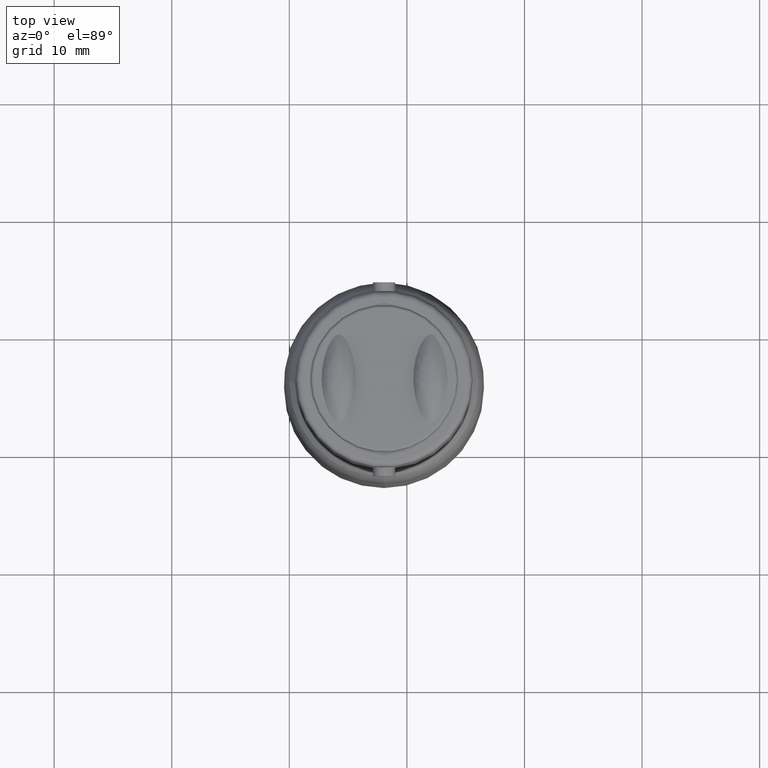
[diagram: clean part render]
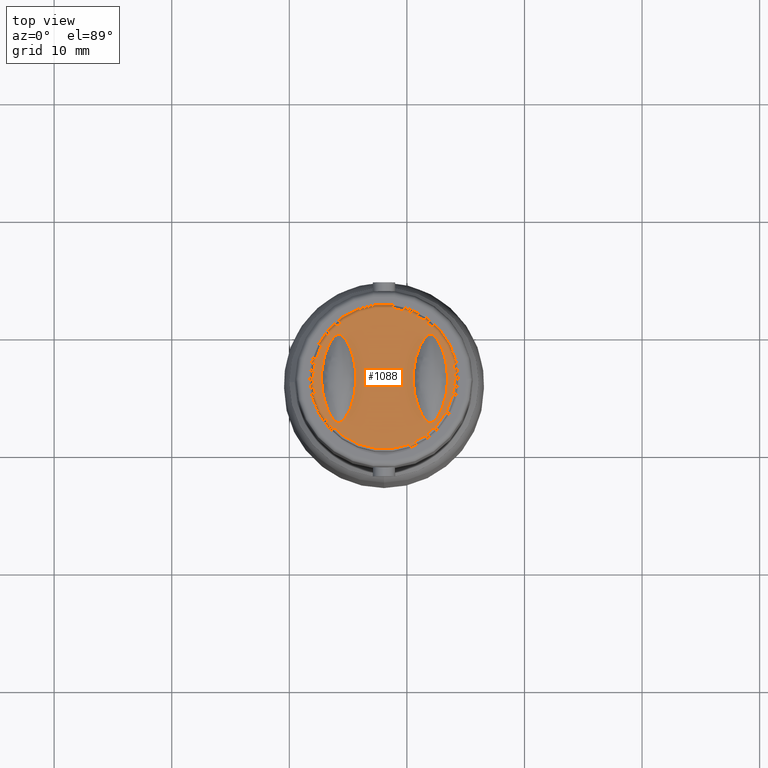
[diagram: same view with one face highlighted and labeled with its STEP entity id]
A machine part, top view. The second image highlights one B-rep face of the part: STEP entity #1088.
In plain terms, the highlighted planar face has unit normal (0, 0, -1).
Its self-contained STEP definition (entity closure, byte-faithful):
#739=CARTESIAN_POINT('',(-15.800000000000002,1.972957574304435,18.0));
#740=VERTEX_POINT('',#739);
#741=CARTESIAN_POINT('',(-15.800000000000002,1.972957574304443,18.0));
#742=CARTESIAN_POINT('',(-15.850782629635848,1.972957574304443,18.0));
#743=CARTESIAN_POINT('',(-15.908686070109809,1.986213762744933,18.0));
#744=CARTESIAN_POINT('',(-15.957294096310468,2.007260780977127,18.0));
#745=CARTESIAN_POINT('',(-15.986168685855077,2.019763325517483,18.0));
#746=CARTESIAN_POINT('',(-16.014145178373358,2.035201279453822,18.0));
#747=CARTESIAN_POINT('',(-16.041449401634488,2.053023016907709,18.0));
#748=CARTESIAN_POINT('',(-16.072800448924937,2.073486156560914,18.0));
#749=CARTESIAN_POINT('',(-16.100115073459218,2.094640493962290,18.0));
#750=CARTESIAN_POINT('',(-16.128805695748067,2.119553785065623,18.0));
#751=CARTESIAN_POINT('',(-16.195207572751283,2.177213367173455,18.0));
#752=CARTESIAN_POINT('',(-16.248475657404736,2.236938288240417,18.0));
#753=CARTESIAN_POINT('',(-16.302832606254640,2.305674664322323,18.0));
#754=CARTESIAN_POINT('',(-16.352989318148218,2.369099685128193,18.0));
#755=CARTESIAN_POINT('',(-16.400110086239980,2.437237137307885,18.0));
#756=CARTESIAN_POINT('',(-16.439998217818175,2.499561912207898,18.0));
#757=CARTESIAN_POINT('',(-16.475804140763941,2.555508280197265,18.0));
#758=CARTESIAN_POINT('',(-16.511120884351453,2.614914989491996,18.0));
#759=CARTESIAN_POINT('',(-16.545471683894824,2.676722536256025,18.0));
#760=CARTESIAN_POINT('',(-16.642949910460459,2.852115543901247,18.0));
#761=CARTESIAN_POINT('',(-16.732000547066463,3.046825292684816,18.0));
#762=CARTESIAN_POINT('',(-16.805010279170453,3.231603410074826,18.0));
#763=CARTESIAN_POINT('',(-16.856035915392241,3.360742645735350,18.0));
#764=CARTESIAN_POINT('',(-16.898936197187773,3.482229897963683,18.0));
#765=CARTESIAN_POINT('',(-16.940283054448468,3.612145467040460,18.0));
#766=CARTESIAN_POINT('',(-17.090009121652340,4.082598326462732,18.0));
#767=CARTESIAN_POINT('',(-17.193237693381953,4.613227743067776,18.0));
#768=CARTESIAN_POINT('',(-17.235813672992780,5.122452310108884,18.0));
#769=CARTESIAN_POINT('',(-17.251282016098873,5.307459452470453,18.0));
#770=CARTESIAN_POINT('',(-17.259230557906406,5.489531226549478,18.0));
#771=CARTESIAN_POINT('',(-17.260717623596815,5.664514864392626,18.0));
#772=CARTESIAN_POINT('',(-17.261946024384049,5.809061295573078,18.0));
#773=CARTESIAN_POINT('',(-17.258975921320378,5.953829603335936,18.0));
#774=CARTESIAN_POINT('',(-17.251142781273074,6.104089528496590,18.0));
#775=CARTESIAN_POINT('',(-17.224749010769749,6.610390444424077,18.0));
#776=CARTESIAN_POINT('',(-17.138576875250347,7.151804483174278,18.0));
#777=CARTESIAN_POINT('',(-16.999678669452344,7.642643747701627,18.0));
#778=CARTESIAN_POINT('',(-16.958865100476221,7.786870968376525,18.0));
#779=CARTESIAN_POINT('',(-16.913859884173821,7.926776562132245,18.0));
#780=CARTESIAN_POINT('',(-16.865646664627768,8.060371488048602,18.0));
#781=CARTESIAN_POINT('',(-16.828001183559373,8.164684066668544,18.0));
#782=CARTESIAN_POINT('',(-16.785261107063548,8.273852512033763,18.0));
#783=CARTESIAN_POINT('',(-16.737338596461868,8.384315774564625,18.0));
#784=CARTESIAN_POINT('',(-16.652787217715293,8.579210011752222,18.0));
#785=CARTESIAN_POINT('',(-16.552601795840495,8.775186820796344,18.0));
#786=CARTESIAN_POINT('',(-16.447582861926975,8.941021942019637,18.0));
#787=CARTESIAN_POINT('',(-16.409894728322115,9.000535174273434,18.0));
#788=CARTESIAN_POINT('',(-16.367027250287556,9.063539814138398,18.0));
#789=CARTESIAN_POINT('',(-16.320225793993128,9.124498407951869,18.0));
#790=CARTESIAN_POINT('',(-16.282097412325797,9.174160378216255,18.0));
#791=CARTESIAN_POINT('',(-16.241814333149435,9.221665416861928,18.0));
#792=CARTESIAN_POINT('',(-16.202187481645076,9.262876780144946,18.0));
#793=CARTESIAN_POINT('',(-16.171400494290221,9.294894810144907,18.0));
#794=CARTESIAN_POINT('',(-16.134294335158856,9.329818199873820,18.0));
#795=CARTESIAN_POINT('',(-16.097128268062129,9.359240325814687,18.0));
#796=CARTESIAN_POINT('',(-16.070250166028753,9.380518092467241,18.0));
#797=CARTESIAN_POINT('',(-16.043655807515364,9.399210935982259,18.0));
#798=CARTESIAN_POINT('',(-16.013335931358284,9.416813645529725,18.0));
#799=CARTESIAN_POINT('',(-15.976149986007693,9.438402566007609,18.0));
#800=CARTESIAN_POINT('',(-15.940315069038009,9.454526618784875,18.0));
#801=CARTESIAN_POINT('',(-15.899046169569541,9.465877795964655,18.0));
#802=CARTESIAN_POINT('',(-15.829081425319860,9.485121880942566,18.0));
#803=CARTESIAN_POINT('',(-15.759044955727221,9.483800375323893,18.0));
#804=CARTESIAN_POINT('',(-15.689801560759943,9.462639897978361,18.0));
#805=CARTESIAN_POINT('',(-15.643217305255851,9.448403954120920,18.0));
#806=CARTESIAN_POINT('',(-15.602122022324936,9.427628215292364,18.0));
#807=CARTESIAN_POINT('',(-15.561211193697554,9.401202311267291,18.0));
#808=CARTESIAN_POINT('',(-15.527681726256160,9.379544317079780,18.0));
#809=CARTESIAN_POINT('',(-15.498708157899532,9.357032900605461,18.0));
#810=CARTESIAN_POINT('',(-15.468342432056195,9.330457813954840,18.0));
#811=CARTESIAN_POINT('',(-15.409815532267489,9.279236992120994,18.0));
#812=CARTESIAN_POINT('',(-15.362451537455403,9.227293117586228,18.0));
#813=CARTESIAN_POINT('',(-15.313862924338457,9.167629843560631,18.0));
#814=CARTESIAN_POINT('',(-15.258313006955413,9.099418595485968,18.0));
#815=CARTESIAN_POINT('',(-15.205739906101771,9.024222739064978,18.0));
#816=CARTESIAN_POINT('',(-15.161822075383309,8.955776389425926,18.0));
#817=CARTESIAN_POINT('',(-15.123354281719406,8.895823973473476,18.0));
#818=CARTESIAN_POINT('',(-15.085806845860912,8.832475970196489,18.0));
#819=CARTESIAN_POINT('',(-15.049208852629585,8.766170886141273,18.0));
#820=CARTESIAN_POINT('',(-14.954752376659531,8.595042798894324,18.0));
#821=CARTESIAN_POINT('',(-14.868415313961719,8.406157184619485,18.0));
#822=CARTESIAN_POINT('',(-14.797161003575599,8.226381030785674,18.0));
#823=CARTESIAN_POINT('',(-14.744824474629159,8.094334845396785,18.0));
#824=CARTESIAN_POINT('',(-14.701000910874056,7.970286092709636,18.0));
#825=CARTESIAN_POINT('',(-14.658816557514717,7.837520840888412,18.0));
#826=CARTESIAN_POINT('',(-14.502283695840221,7.344870767021387,18.0));
#827=CARTESIAN_POINT('',(-14.397223163789132,6.786383472995874,18.0));
#828=CARTESIAN_POINT('',(-14.358370216393805,6.255879231840493,18.0));
#829=CARTESIAN_POINT('',(-14.346268100857923,6.090635047058013,18.0));
#830=CARTESIAN_POINT('',(-14.340138957848328,5.928204913042993,18.0));
#831=CARTESIAN_POINT('',(-14.339161529349111,5.771584639057931,18.0));
#832=CARTESIAN_POINT('',(-14.338164326475287,5.611795777323311,18.0));
#833=CARTESIAN_POINT('',(-14.342336575727296,5.449834643270605,18.0));
#834=CARTESIAN_POINT('',(-14.352604522897773,5.282334238838266,18.0));
#835=CARTESIAN_POINT('',(-14.383769740022043,4.773937926910739,18.0));
#836=CARTESIAN_POINT('',(-14.475318606403421,4.234446087897810,18.0));
#837=CARTESIAN_POINT('',(-14.617944146243888,3.748725599249985,18.0));
#838=CARTESIAN_POINT('',(-14.651761417480511,3.633558697668668,18.0));
#839=CARTESIAN_POINT('',(-14.688214068146713,3.521382706719704,18.0));
#840=CARTESIAN_POINT('',(-14.726781039921621,3.413233878534108,18.0));
#841=CARTESIAN_POINT('',(-14.767067322638724,3.300263788654168,18.0));
#842=CARTESIAN_POINT('',(-14.812406547535391,3.183785864735896,18.0));
#843=CARTESIAN_POINT('',(-14.864160661252571,3.064729576642641,18.0));
#844=CARTESIAN_POINT('',(-14.930721253775003,2.911612142880504,18.0));
#845=CARTESIAN_POINT('',(-15.006756003078070,2.757838106219436,18.0));
#846=CARTESIAN_POINT('',(-15.087399736774927,2.618822819533618,18.0));
#847=CARTESIAN_POINT('',(-15.132831328904583,2.540506929197511,18.0));
#848=CARTESIAN_POINT('',(-15.177787808859751,2.468905351760862,18.0));
#849=CARTESIAN_POINT('',(-15.232238453097269,2.392368030519584,18.0));
#850=CARTESIAN_POINT('',(-15.283270231933342,2.320636360399157,18.0));
#851=CARTESIAN_POINT('',(-15.340596831525886,2.249251549949433,18.0));
#852=CARTESIAN_POINT('',(-15.396832412567685,2.190641349769020,18.0));
#853=CARTESIAN_POINT('',(-15.428441582498520,2.157697442319999,18.0));
#854=CARTESIAN_POINT('',(-15.466499282884801,2.121890758421082,18.0));
#855=CARTESIAN_POINT('',(-15.504630987297716,2.091868503449623,18.0));
#856=CARTESIAN_POINT('',(-15.531137748287696,2.070998921322077,18.0));
#857=CARTESIAN_POINT('',(-15.557512169215835,2.052550262754628,18.0));
#858=CARTESIAN_POINT('',(-15.587428163252097,2.035241238382706,18.0));
#859=CARTESIAN_POINT('',(-15.624335549411418,2.013887080945675,18.0));
#860=CARTESIAN_POINT('',(-15.659909150655569,1.997919805679659,18.0));
#861=CARTESIAN_POINT('',(-15.700861734934486,1.986645282663578,18.0));
#862=CARTESIAN_POINT('',(-15.734004528835836,1.977520847680109,18.0));
#863=CARTESIAN_POINT('',(-15.768413659030896,1.972957574304443,18.0));
#864=CARTESIAN_POINT('',(-15.800000000000002,1.972957574304443,18.0));
#865=B_SPLINE_CURVE_WITH_KNOTS('',3,(#741,#742,#743,#744,#745,#746,#747,#748,#749,#750,#751,#752,#753,#754,#755,#756,#757,#758,#759,#760,#761,#762,#763,#764,#765,#766,#767,#768,#769,#770,#771,#772,#773,#774,#775,#776,#777,#778,#779,#780,#781,#782,#783,#784,#785,#786,#787,#788,#789,#790,#791,#792,#793,#794,#795,#796,#797,#798,#799,#800,#801,#802,#803,#804,#805,#806,#807,#808,#809,#810,#811,#812,#813,#814,#815,#816,#817,#818,#819,#820,#821,#822,#823,#824,#825,#826,#827,#828,#829,#830,#831,#832,#833,#834,#835,#836,#837,#838,#839,#840,#841,#842,#843,#844,#845,#846,#847,#848,#849,#850,#851,#852,#853,#854,#855,#856,#857,#858,#859,#860,#861,#862,#863,#864),.UNSPECIFIED.,.T.,.U.,(4,3,3,3,3,3,3,3,3,3,3,3,3,3,3,3,3,3,3,3,3,3,3,3,3,3,3,3,3,3,3,3,3,3,3,3,3,3,3,3,3,4),(0.0,0.015234788890754,0.024284699171071,0.034675918231182,0.058725464560160,0.080916669032005,0.100836793789790,0.157364690088197,0.196871366661082,0.339933734721068,0.391909938555948,0.434845237325848,0.579515754561759,0.622025447902261,0.655217544819677,0.713779534219268,0.734795669104770,0.751917170774408,0.765219248415910,0.774839168628980,0.786637562048103,0.806639829827420,0.820096575461184,0.831125379563491,0.852382296517004,0.876684697940642,0.897971263060282,0.952910174983660,0.993262989270723,1.142999585756325,1.189640309616475,1.237224622850423,1.381652270268526,1.415896830760768,1.451668009622444,1.497673064858636,1.523590551680981,1.547880722605964,1.561533860462691,1.571024662604987,1.582733472922399,1.592209375213131),.UNSPECIFIED.);
#866=EDGE_CURVE('',#740,#740,#865,.T.);
#894=CARTESIAN_POINT('',(-8.0,1.972957574304435,18.0));
#895=VERTEX_POINT('',#894);
#896=CARTESIAN_POINT('',(-8.0,1.972957574304443,18.0));
#897=CARTESIAN_POINT('',(-8.050782629635874,1.972957574304443,18.0));
#898=CARTESIAN_POINT('',(-8.108686070109874,1.986213762744950,18.0));
#899=CARTESIAN_POINT('',(-8.157294096310553,2.007260780977163,18.0));
#900=CARTESIAN_POINT('',(-8.186168685855142,2.019763325517517,18.0));
#901=CARTESIAN_POINT('',(-8.214145178373409,2.035201279453855,18.0));
#902=CARTESIAN_POINT('',(-8.241449401634522,2.053023016907734,18.0));
#903=CARTESIAN_POINT('',(-8.272800448924926,2.073486156560910,18.0));
#904=CARTESIAN_POINT('',(-8.300115073459166,2.094640493962255,18.0));
#905=CARTESIAN_POINT('',(-8.328805695747979,2.119553785065549,18.0));
#906=CARTESIAN_POINT('',(-8.395207572751202,2.177213367173374,18.0));
#907=CARTESIAN_POINT('',(-8.448475657404666,2.236938288240336,18.0));
#908=CARTESIAN_POINT('',(-8.502832606254572,2.305674664322236,18.0));
#909=CARTESIAN_POINT('',(-8.552989318148118,2.369099685128059,18.0));
#910=CARTESIAN_POINT('',(-8.600110086239855,2.437237137307704,18.0));
#911=CARTESIAN_POINT('',(-8.639998217818039,2.499561912207688,18.0));
#912=CARTESIAN_POINT('',(-8.675804140763967,2.555508280197300,18.0));
#913=CARTESIAN_POINT('',(-8.711120884351615,2.614914989492269,18.0));
#914=CARTESIAN_POINT('',(-8.745471683895126,2.676722536256571,18.0));
#915=CARTESIAN_POINT('',(-8.842949910460792,2.852115543901917,18.0));
#916=CARTESIAN_POINT('',(-8.932000547066805,3.046825292685601,18.0));
#917=CARTESIAN_POINT('',(-9.005010279170786,3.231603410075670,18.0));
#918=CARTESIAN_POINT('',(-9.056035915392368,3.360742645735735,18.0));
#919=CARTESIAN_POINT('',(-9.098936197187754,3.482229897963661,18.0));
#920=CARTESIAN_POINT('',(-9.140283054448318,3.612145467039987,18.0));
#921=CARTESIAN_POINT('',(-9.290009121652235,4.082598326462266,18.0));
#922=CARTESIAN_POINT('',(-9.393237693381888,4.613227743067354,18.0));
#923=CARTESIAN_POINT('',(-9.435813672992747,5.122452310108520,18.0));
#924=CARTESIAN_POINT('',(-9.451282016098734,5.307459452468703,18.0));
#925=CARTESIAN_POINT('',(-9.459230557906272,5.489531226546388,18.0));
#926=CARTESIAN_POINT('',(-9.460717623596775,5.664514864388337,18.0));
#927=CARTESIAN_POINT('',(-9.461946024384091,5.809061295568298,18.0));
#928=CARTESIAN_POINT('',(-9.458975921320535,5.953829603330345,18.0));
#929=CARTESIAN_POINT('',(-9.451142781273401,6.104089528490300,18.0));
#930=CARTESIAN_POINT('',(-9.424749010770519,6.610390444417750,18.0));
#931=CARTESIAN_POINT('',(-9.338576875251578,7.151804483168323,18.0));
#932=CARTESIAN_POINT('',(-9.199678669453853,7.642643747696291,18.0));
#933=CARTESIAN_POINT('',(-9.158865100478701,7.786870968368229,18.0));
#934=CARTESIAN_POINT('',(-9.113859884177440,7.926776562121196,18.0));
#935=CARTESIAN_POINT('',(-9.065646664632627,8.060371488035136,18.0));
#936=CARTESIAN_POINT('',(-9.028001183563491,8.164684066657918,18.0));
#937=CARTESIAN_POINT('',(-8.985261107067245,8.273852512024837,18.0));
#938=CARTESIAN_POINT('',(-8.937338596464594,8.384315774558340,18.0));
#939=CARTESIAN_POINT('',(-8.852787217718284,8.579210011746039,18.0));
#940=CARTESIAN_POINT('',(-8.752601795843654,8.775186820790621,18.0));
#941=CARTESIAN_POINT('',(-8.647582861930149,8.941021942014622,18.0));
#942=CARTESIAN_POINT('',(-8.609894728327060,9.000535174265885,18.0));
#943=CARTESIAN_POINT('',(-8.567027250295357,9.063539814127170,18.0));
#944=CARTESIAN_POINT('',(-8.520225794003556,9.124498407938283,18.0));
#945=CARTESIAN_POINT('',(-8.482097412341622,9.174160378196506,18.0));
#946=CARTESIAN_POINT('',(-8.441814333171040,9.221665416837057,18.0));
#947=CARTESIAN_POINT('',(-8.402187481671563,9.262876780117399,18.0));
#948=CARTESIAN_POINT('',(-8.371400494302970,9.294894810133513,18.0));
#949=CARTESIAN_POINT('',(-8.334294335158157,9.329818199875900,18.0));
#950=CARTESIAN_POINT('',(-8.297128268045276,9.359240325828020,18.0));
#951=CARTESIAN_POINT('',(-8.270250166011769,9.380518092479573,18.0));
#952=CARTESIAN_POINT('',(-8.243655807495953,9.399210935995074,18.0));
#953=CARTESIAN_POINT('',(-8.213335931338527,9.416813645541192,18.0));
#954=CARTESIAN_POINT('',(-8.176149985995856,9.438402566012574,18.0));
#955=CARTESIAN_POINT('',(-8.140315069033772,9.454526618785485,18.0));
#956=CARTESIAN_POINT('',(-8.099046169574384,9.465877795963316,18.0));
#957=CARTESIAN_POINT('',(-8.029081425310451,9.485121880946078,18.0));
#958=CARTESIAN_POINT('',(-7.959044955700432,9.483800375322957,18.0));
#959=CARTESIAN_POINT('',(-7.889801560721634,9.462639897966657,18.0));
#960=CARTESIAN_POINT('',(-7.843217305243907,9.448403954112395,18.0));
#961=CARTESIAN_POINT('',(-7.802122022337651,9.427628215297377,18.0));
#962=CARTESIAN_POINT('',(-7.761211193728317,9.401202311287168,18.0));
#963=CARTESIAN_POINT('',(-7.727681726268991,9.379544317090701,18.0));
#964=CARTESIAN_POINT('',(-7.698708157899580,9.357032900606463,18.0));
#965=CARTESIAN_POINT('',(-7.668342432042959,9.330457813943257,18.0));
#966=CARTESIAN_POINT('',(-7.609815532265596,9.279236992117486,18.0));
#967=CARTESIAN_POINT('',(-7.562451537462357,9.227293117593138,18.0));
#968=CARTESIAN_POINT('',(-7.513862924353726,9.167629843579384,18.0));
#969=CARTESIAN_POINT('',(-7.458313006979550,9.099418595517475,18.0));
#970=CARTESIAN_POINT('',(-7.405739906133049,9.024222739110440,18.0));
#971=CARTESIAN_POINT('',(-7.361822075417598,8.955776389479368,18.0));
#972=CARTESIAN_POINT('',(-7.323354281737970,8.895823973505294,18.0));
#973=CARTESIAN_POINT('',(-7.285806845870913,8.832475970214723,18.0));
#974=CARTESIAN_POINT('',(-7.249208852628316,8.766170886138982,18.0));
#975=CARTESIAN_POINT('',(-7.154752376658100,8.595042798891459,18.0));
#976=CARTESIAN_POINT('',(-7.068415313960212,8.406157184616069,18.0));
#977=CARTESIAN_POINT('',(-6.997161003574119,8.226381030781948,18.0));
#978=CARTESIAN_POINT('',(-6.944824474628582,8.094334845395062,18.0));
#979=CARTESIAN_POINT('',(-6.901000910874118,7.970286092709677,18.0));
#980=CARTESIAN_POINT('',(-6.858816557515354,7.837520840890419,18.0));
#981=CARTESIAN_POINT('',(-6.702283695840679,7.344870767023403,18.0));
#982=CARTESIAN_POINT('',(-6.597223163789384,6.786383472997736,18.0));
#983=CARTESIAN_POINT('',(-6.558370216393921,6.255879231842113,18.0));
#984=CARTESIAN_POINT('',(-6.546268100857971,6.090635047059210,18.0));
#985=CARTESIAN_POINT('',(-6.540138957848339,5.928204913043772,18.0));
#986=CARTESIAN_POINT('',(-6.539161529349110,5.771584639058316,18.0));
#987=CARTESIAN_POINT('',(-6.538164326475277,5.611795777323594,18.0));
#988=CARTESIAN_POINT('',(-6.542336575727282,5.449834643270815,18.0));
#989=CARTESIAN_POINT('',(-6.552604522897762,5.282334238838379,18.0));
#990=CARTESIAN_POINT('',(-6.583769740022023,4.773937926910860,18.0));
#991=CARTESIAN_POINT('',(-6.675318606403393,4.234446087897937,18.0));
#992=CARTESIAN_POINT('',(-6.817944146243852,3.748725599250104,18.0));
#993=CARTESIAN_POINT('',(-6.851761417480430,3.633558697668936,18.0));
#994=CARTESIAN_POINT('',(-6.888214068146579,3.521382706720113,18.0));
#995=CARTESIAN_POINT('',(-6.926781039921428,3.413233878534646,18.0));
#996=CARTESIAN_POINT('',(-6.967067322638563,3.300263788654583,18.0));
#997=CARTESIAN_POINT('',(-7.012406547535248,3.183785864736234,18.0));
#998=CARTESIAN_POINT('',(-7.064160661252471,3.064729576642864,18.0));
#999=CARTESIAN_POINT('',(-7.130721253774900,2.911612142880715,18.0));
#1000=CARTESIAN_POINT('',(-7.206756003077967,2.757838106219626,18.0));
#1001=CARTESIAN_POINT('',(-7.287399736774828,2.618822819533784,18.0));
#1002=CARTESIAN_POINT('',(-7.332831328904470,2.540506929197691,18.0));
#1003=CARTESIAN_POINT('',(-7.377787808859618,2.468905351761064,18.0));
#1004=CARTESIAN_POINT('',(-7.432238453097108,2.392368030519807,18.0));
#1005=CARTESIAN_POINT('',(-7.483270231933146,2.320636360399412,18.0));
#1006=CARTESIAN_POINT('',(-7.540596831525655,2.249251549949703,18.0));
#1007=CARTESIAN_POINT('',(-7.596832412567433,2.190641349769280,18.0));
#1008=CARTESIAN_POINT('',(-7.628441582498296,2.157697442320210,18.0));
#1009=CARTESIAN_POINT('',(-7.666499282884557,2.121890758421287,18.0));
#1010=CARTESIAN_POINT('',(-7.704630987297507,2.091868503449783,18.0));
#1011=CARTESIAN_POINT('',(-7.731137748287311,2.070998921322361,18.0));
#1012=CARTESIAN_POINT('',(-7.757512169215207,2.052550262755056,18.0));
#1013=CARTESIAN_POINT('',(-7.787428163251266,2.035241238383187,18.0));
#1014=CARTESIAN_POINT('',(-7.824335549410860,2.013887080945918,18.0));
#1015=CARTESIAN_POINT('',(-7.859909150655261,1.997919805679742,18.0));
#1016=CARTESIAN_POINT('',(-7.900861734934485,1.986645282663577,18.0));
#1017=CARTESIAN_POINT('',(-7.934004528835835,1.977520847680109,18.0));
#1018=CARTESIAN_POINT('',(-7.968413659030896,1.972957574304443,18.0));
#1019=CARTESIAN_POINT('',(-8.0,1.972957574304443,18.0));
#1020=B_SPLINE_CURVE_WITH_KNOTS('',3,(#896,#897,#898,#899,#900,#901,#902,#903,#904,#905,#906,#907,#908,#909,#910,#911,#912,#913,#914,#915,#916,#917,#918,#919,#920,#921,#922,#923,#924,#925,#926,#927,#928,#929,#930,#931,#932,#933,#934,#935,#936,#937,#938,#939,#940,#941,#942,#943,#944,#945,#946,#947,#948,#949,#950,#951,#952,#953,#954,#955,#956,#957,#958,#959,#960,#961,#962,#963,#964,#965,#966,#967,#968,#969,#970,#971,#972,#973,#974,#975,#976,#977,#978,#979,#980,#981,#982,#983,#984,#985,#986,#987,#988,#989,#990,#991,#992,#993,#994,#995,#996,#997,#998,#999,#1000,#1001,#1002,#1003,#1004,#1005,#1006,#1007,#1008,#1009,#1010,#1011,#1012,#1013,#1014,#1015,#1016,#1017,#1018,#1019),.UNSPECIFIED.,.T.,.U.,(4,3,3,3,3,3,3,3,3,3,3,3,3,3,3,3,3,3,3,3,3,3,3,3,3,3,3,3,3,3,3,3,3,3,3,3,3,3,3,3,3,4),(0.0,0.015234788890763,0.024284699171076,0.034675918231171,0.058725464560150,0.080916669031980,0.100836793789849,0.157364690088283,0.196871366661034,0.339933734721034,0.391909938555523,0.434845237325249,0.579515754561235,0.622025447900833,0.655217544819047,0.713779534218678,0.734795669103209,0.751917170770594,0.765219248417920,0.774839168631070,0.786637562047641,0.806639829831108,0.820096575457810,0.831125379565093,0.852382296514777,0.876684697934317,0.897971263060528,0.952910174984040,0.993262989270520,1.142999585756173,1.189640309616436,1.237224622850412,1.381652270268514,1.415896830760711,1.451668009622421,1.497673064858618,1.523590551680956,1.547880722605928,1.561533860462667,1.571024662604899,1.582733472922399,1.592209375213131),.UNSPECIFIED.);
#1021=EDGE_CURVE('',#895,#895,#1020,.T.);
#1031=CARTESIAN_POINT('',(-5.947431124239414,5.734766993235527,18.0));
#1032=VERTEX_POINT('',#1031);
#1033=CARTESIAN_POINT('',(-11.947431124239413,5.734766993235528,18.0));
#1034=DIRECTION('',(0.0,0.0,-1.0));
#1035=DIRECTION('',(-1.0,0.0,0.0));
#1036=AXIS2_PLACEMENT_3D('',#1033,#1034,#1035);
#1037=CIRCLE('',#1036,6.0);
#1038=EDGE_CURVE('',#1032,#1032,#1037,.T.);
#1074=CARTESIAN_POINT('',(-11.947431124239413,5.734766993235528,18.0));
#1075=DIRECTION('',(0.0,0.0,-1.0));
#1076=DIRECTION('',(-1.0,0.0,0.0));
#1077=AXIS2_PLACEMENT_3D('',#1074,#1075,#1076);
#1078=PLANE('',#1077);
#1079=ORIENTED_EDGE('',*,*,#1038,.F.);
#1080=EDGE_LOOP('',(#1079));
#1081=FACE_OUTER_BOUND('',#1080,.T.);
#1082=ORIENTED_EDGE('',*,*,#866,.T.);
#1083=EDGE_LOOP('',(#1082));
#1084=FACE_BOUND('',#1083,.T.);
#1085=ORIENTED_EDGE('',*,*,#1021,.T.);
#1086=EDGE_LOOP('',(#1085));
#1087=FACE_BOUND('',#1086,.T.);
#1088=ADVANCED_FACE('',(#1081,#1084,#1087),#1078,.F.);